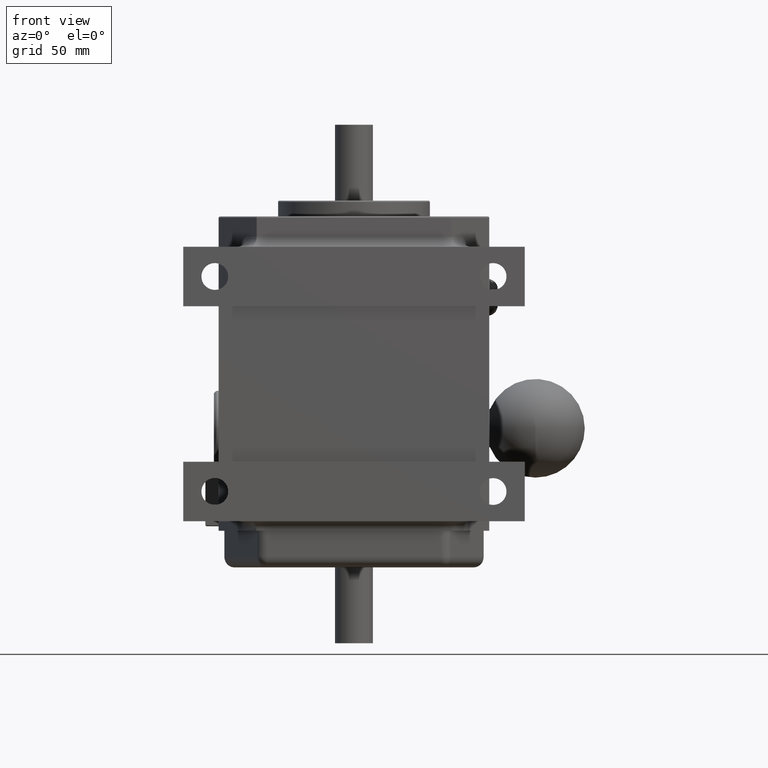
[diagram: clean part render]
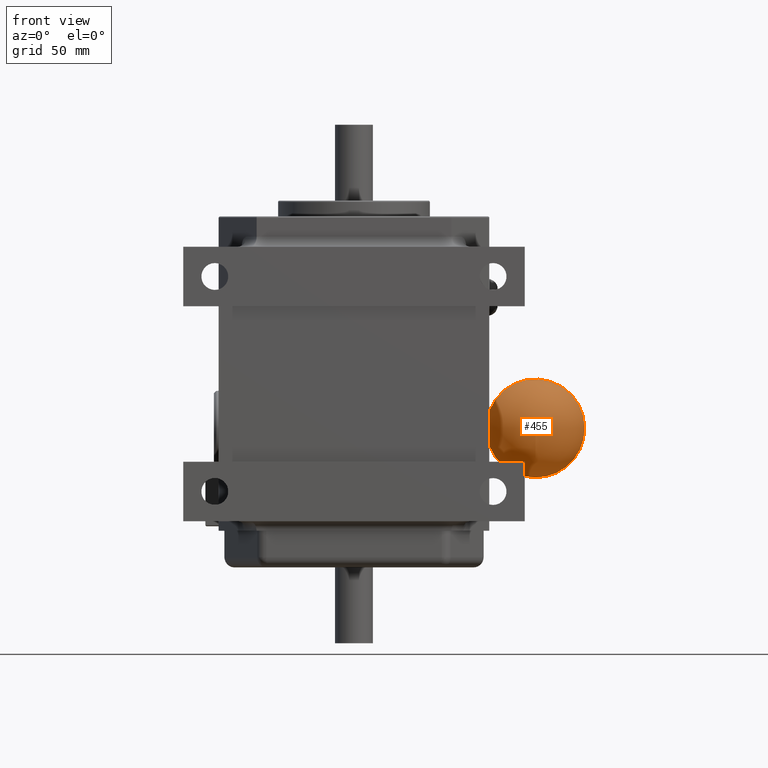
[diagram: same view with one face highlighted and labeled with its STEP entity id]
A machine part, front view. The second image highlights one B-rep face of the part: STEP entity #455.
In plain terms, the highlighted spherical surface has radius 24.765 mm.
Its self-contained STEP definition (entity closure, byte-faithful):
#147 = VERTEX_POINT ( 'NONE', #1048 ) ;
#148 = VERTEX_POINT ( 'NONE', #1049 ) ;
#149 = VERTEX_POINT ( 'NONE', #1050 ) ;
#405 = EDGE_CURVE ( 'NONE', #148, #147, #3833, .T. ) ;
#412 = EDGE_CURVE ( 'NONE', #149, #147, #3842, .T. ) ;
#426 = EDGE_CURVE ( 'NONE', #149, #148, #3862, .T. ) ;
#455 = ADVANCED_FACE ( 'NONE', ( #3910 ), #3914, .T. ) ;
#1048 = CARTESIAN_POINT ( 'NONE',  ( 2.687500000000000400, 4.625000000000000000, -0.5000000000000001100 ) ) ;
#1049 = CARTESIAN_POINT ( 'NONE',  ( 2.687500000000000400, 4.625000000000000000, -1.249999999999999600 ) ) ;
#1050 = CARTESIAN_POINT ( 'NONE',  ( 4.562499999999999100, 4.625000000000000000, -0.8749999999999997800 ) ) ;
#1210 = EDGE_LOOP ( 'NONE', ( #1572, #1573, #1574 ) ) ;
#1572 = ORIENTED_EDGE ( 'NONE', *, *, #426, .F. ) ;
#1573 = ORIENTED_EDGE ( 'NONE', *, *, #412, .T. ) ;
#1574 = ORIENTED_EDGE ( 'NONE', *, *, #405, .F. ) ;
#3833 = CIRCLE ( 'NONE', #4285, 0.3749999999999999400 ) ;
#3842 = CIRCLE ( 'NONE', #4283, 0.9749999999999993100 ) ;
#3862 = CIRCLE ( 'NONE', #4299, 0.9749999999999994200 ) ;
#3910 = FACE_OUTER_BOUND ( 'NONE', #1210, .T. ) ;
#3914 = SPHERICAL_SURFACE ( 'NONE', #4307, 0.9749999999999994200 ) ;
#4283 = AXIS2_PLACEMENT_3D ( 'NONE', #4580, #4581, #4582 ) ;
#4285 = AXIS2_PLACEMENT_3D ( 'NONE', #4562, #4563, #4564 ) ;
#4299 = AXIS2_PLACEMENT_3D ( 'NONE', #4615, #4618, #4619 ) ;
#4307 = AXIS2_PLACEMENT_3D ( 'NONE', #4703, #4699, #4706 ) ;
#4562 = CARTESIAN_POINT ( 'NONE',  ( 2.687500000000000400, 4.625000000000000000, -0.8749999999999997800 ) ) ;
#4563 = DIRECTION ( 'NONE',  ( -1.000000000000000000, -0.0000000000000000000, -0.0000000000000000000 ) ) ;
#4564 = DIRECTION ( 'NONE',  ( 0.0000000000000000000, 0.0000000000000000000, 1.000000000000000000 ) ) ;
#4580 = CARTESIAN_POINT ( 'NONE',  ( 3.587499999999999900, 4.625000000000000000, -0.8749999999999997800 ) ) ;
#4581 = DIRECTION ( 'NONE',  ( 0.0000000000000000000, -1.000000000000000000, -1.224646799147353200E-016 ) ) ;
#4582 = DIRECTION ( 'NONE',  ( 0.0000000000000000000, 0.0000000000000000000, -1.000000000000000000 ) ) ;
#4615 = CARTESIAN_POINT ( 'NONE',  ( 3.587499999999999900, 4.625000000000000000, -0.8749999999999997800 ) ) ;
#4618 = DIRECTION ( 'NONE',  ( -0.0000000000000000000, 1.000000000000000000, 0.0000000000000000000 ) ) ;
#4619 = DIRECTION ( 'NONE',  ( 0.0000000000000000000, 0.0000000000000000000, 1.000000000000000000 ) ) ;
#4699 = DIRECTION ( 'NONE',  ( 0.0000000000000000000, -1.000000000000000000, 0.0000000000000000000 ) ) ;
#4703 = CARTESIAN_POINT ( 'NONE',  ( 3.587499999999999900, 4.625000000000000000, -0.8749999999999997800 ) ) ;
#4706 = DIRECTION ( 'NONE',  ( 0.0000000000000000000, 0.0000000000000000000, -1.000000000000000000 ) ) ;